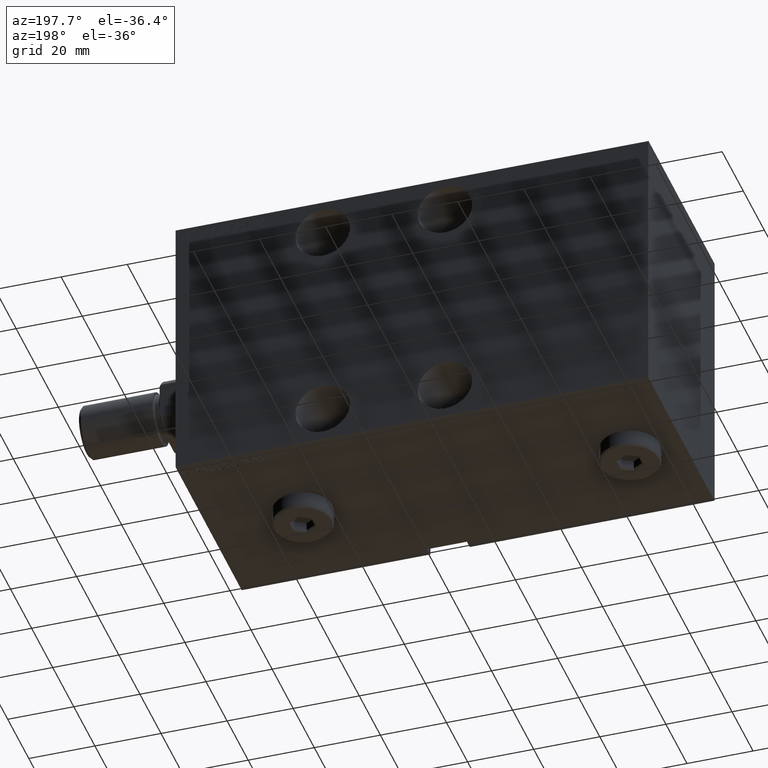
[diagram: clean part render]
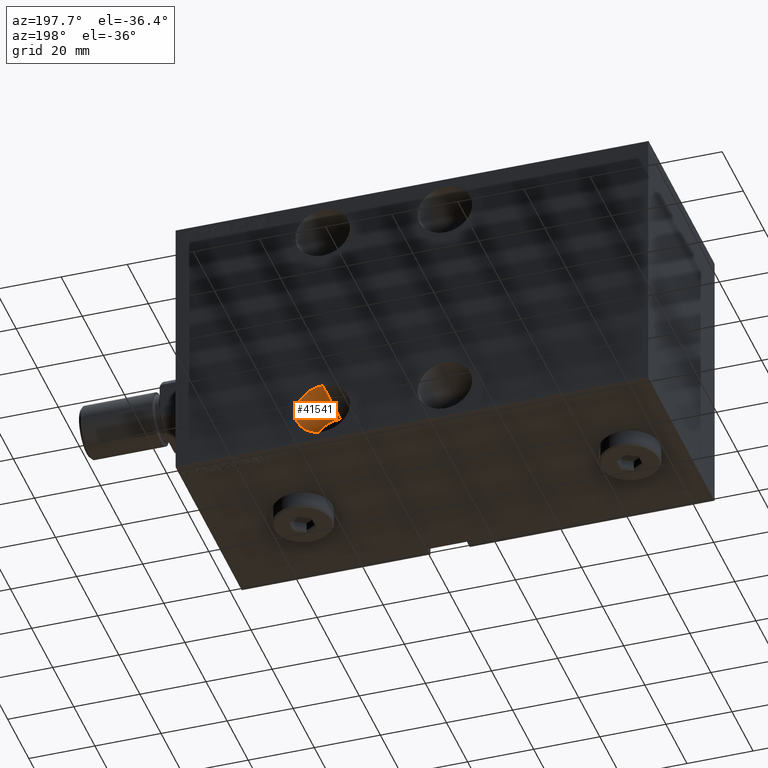
[diagram: same view with one face highlighted and labeled with its STEP entity id]
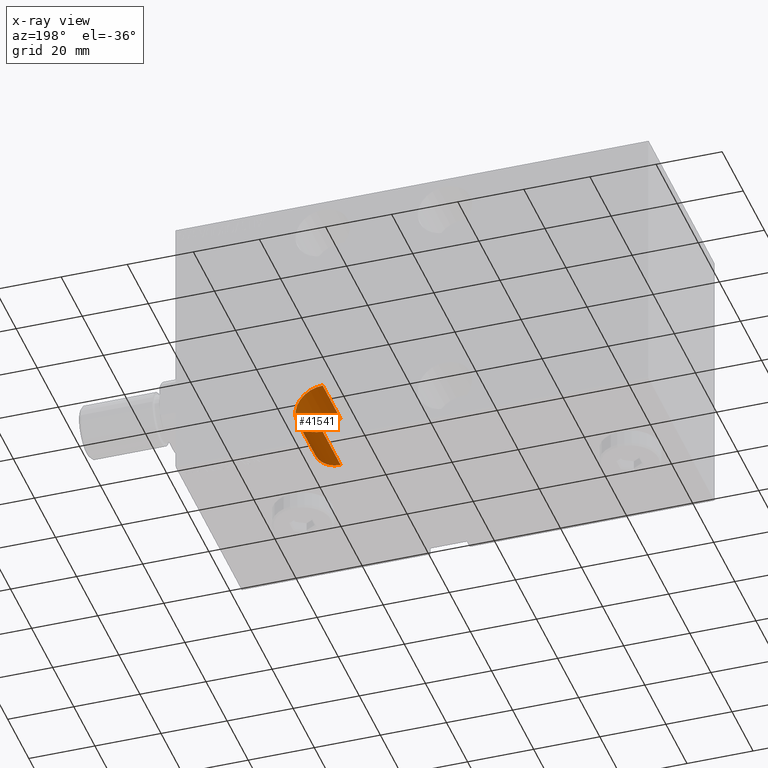
[diagram: x-ray of the same camera — body ghosted, the highlighted face saturated]
A machine part, auxiliary view. The second image highlights one B-rep face of the part: STEP entity #41541.
The next image is the same camera in x-ray: the body ghosted, the highlighted face saturated — about 0% of this face is hidden behind the body in this view.
In plain terms, the highlighted cylindrical surface (edge-blend (fillet) strip) has radius 8.25 mm, axis along (-0, 1, 0).
Its self-contained STEP definition (entity closure, byte-faithful):
#1888 = VERTEX_POINT ( 'NONE', #3616 ) ;
#1967 = EDGE_CURVE ( 'NONE', #17887, #1888, #2441, .T. ) ;
#2040 = LINE ( 'NONE', #32296, #4086 ) ;
#2346 = ORIENTED_EDGE ( 'NONE', *, *, #28179, .F. ) ;
#2441 = CIRCLE ( 'NONE', #8159, 8.250000000000000000 ) ;
#2617 = CARTESIAN_POINT ( 'NONE',  ( 44.50000000000000000, -14.49999999999999289, -23.25000000000001066 ) ) ;
#3616 = CARTESIAN_POINT ( 'NONE',  ( 44.50000000000000000, -31.49999999999999289, -39.75000000000000711 ) ) ;
#4086 = VECTOR ( 'NONE', #5392, 1000.000000000000000 ) ;
#4275 = CARTESIAN_POINT ( 'NONE',  ( 44.50000000000000000, -31.49999999999999289, -31.50000000000000711 ) ) ;
#4310 = CIRCLE ( 'NONE', #12894, 8.250000000000000000 ) ;
#5392 = DIRECTION ( 'NONE',  ( -0.000000000000000000, -1.000000000000000000, -0.000000000000000000 ) ) ;
#6918 = DIRECTION ( 'NONE',  ( -0.000000000000000000, -1.000000000000000000, -0.000000000000000000 ) ) ;
#7405 = DIRECTION ( 'NONE',  ( 0.000000000000000000, -1.000000000000000000, 0.000000000000000000 ) ) ;
#8159 = AXIS2_PLACEMENT_3D ( 'NONE', #4275, #7405, #11658 ) ;
#8457 = ORIENTED_EDGE ( 'NONE', *, *, #28963, .F. ) ;
#9288 = ORIENTED_EDGE ( 'NONE', *, *, #1967, .T. ) ;
#11658 = DIRECTION ( 'NONE',  ( 0.000000000000000000, 0.000000000000000000, -1.000000000000000000 ) ) ;
#12113 = VERTEX_POINT ( 'NONE', #2617 ) ;
#12612 = VERTEX_POINT ( 'NONE', #40860 ) ;
#12894 = AXIS2_PLACEMENT_3D ( 'NONE', #35967, #35304, #28829 ) ;
#16612 = EDGE_CURVE ( 'NONE', #12113, #17887, #2040, .T. ) ;
#16803 = CARTESIAN_POINT ( 'NONE',  ( 44.50000000000000000, -14.49999999999999289, -31.50000000000000711 ) ) ;
#17887 = VERTEX_POINT ( 'NONE', #25762 ) ;
#20598 = CYLINDRICAL_SURFACE ( 'NONE', #31339, 8.250000000000000000 ) ;
#23189 = DIRECTION ( 'NONE',  ( -0.000000000000000000, -1.000000000000000000, -0.000000000000000000 ) ) ;
#23978 = DIRECTION ( 'NONE',  ( 0.000000000000000000, 0.000000000000000000, -1.000000000000000000 ) ) ;
#25762 = CARTESIAN_POINT ( 'NONE',  ( 44.50000000000000000, -31.49999999999999289, -23.25000000000001066 ) ) ;
#26900 = FACE_OUTER_BOUND ( 'NONE', #41421, .T. ) ;
#28179 = EDGE_CURVE ( 'NONE', #12612, #1888, #39318, .T. ) ;
#28829 = DIRECTION ( 'NONE',  ( 0.000000000000000000, 0.000000000000000000, -1.000000000000000000 ) ) ;
#28963 = EDGE_CURVE ( 'NONE', #12113, #12612, #4310, .T. ) ;
#31339 = AXIS2_PLACEMENT_3D ( 'NONE', #16803, #6918, #23978 ) ;
#32195 = VECTOR ( 'NONE', #23189, 1000.000000000000000 ) ;
#32296 = CARTESIAN_POINT ( 'NONE',  ( 44.50000000000000000, -14.49999999999999289, -23.25000000000001066 ) ) ;
#33489 = CARTESIAN_POINT ( 'NONE',  ( 44.50000000000000000, -14.49999999999999289, -39.75000000000000711 ) ) ;
#33545 = ORIENTED_EDGE ( 'NONE', *, *, #16612, .T. ) ;
#35304 = DIRECTION ( 'NONE',  ( 0.000000000000000000, -1.000000000000000000, 0.000000000000000000 ) ) ;
#35967 = CARTESIAN_POINT ( 'NONE',  ( 44.50000000000000000, -14.49999999999999289, -31.50000000000000711 ) ) ;
#39318 = LINE ( 'NONE', #33489, #32195 ) ;
#40860 = CARTESIAN_POINT ( 'NONE',  ( 44.50000000000000000, -14.49999999999999289, -39.75000000000000711 ) ) ;
#41421 = EDGE_LOOP ( 'NONE', ( #8457, #33545, #9288, #2346 ) ) ;
#41541 = ADVANCED_FACE ( 'NONE', ( #26900 ), #20598, .F. ) ;